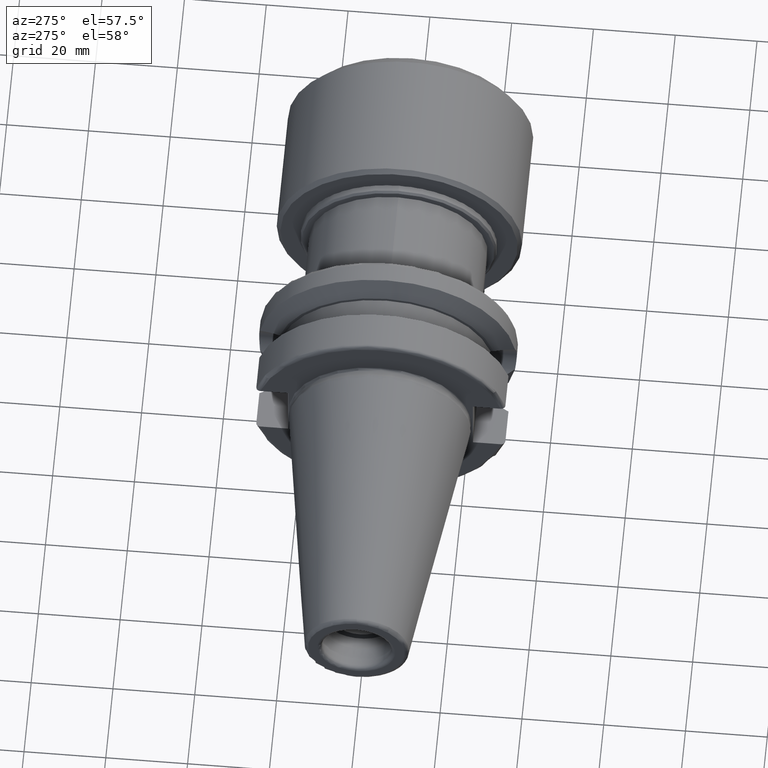
[diagram: clean part render]
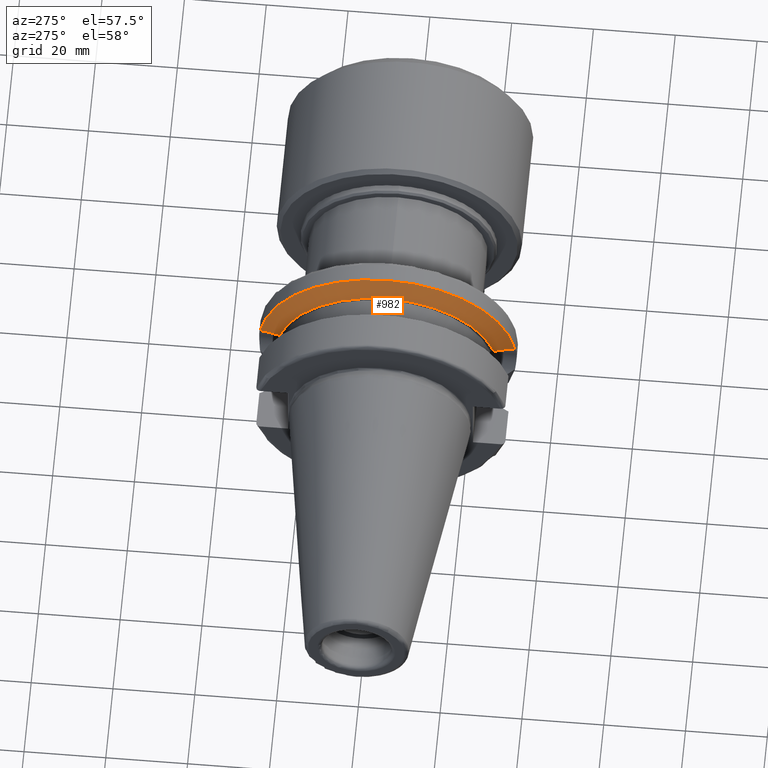
[diagram: same view with one face highlighted and labeled with its STEP entity id]
A machine part, auxiliary view. The second image highlights one B-rep face of the part: STEP entity #982.
In plain terms, the highlighted conical surface has half-angle 60.125 deg.
Its self-contained STEP definition (entity closure, byte-faithful):
#43=B_SPLINE_CURVE_WITH_KNOTS('',3,(#1649,#1650,#1651,#1652,#1653,#1654),
 .UNSPECIFIED.,.F.,.F.,(4,2,4),(1.46421027899563,1.54570476603974,2.04294020568402),
 .UNSPECIFIED.);
#52=B_SPLINE_CURVE_WITH_KNOTS('',3,(#1808,#1809,#1810,#1811,#1812,#1813),
 .UNSPECIFIED.,.F.,.F.,(4,2,4),(3.12975744792551,3.6269928875698,3.7084873746139),
 .UNSPECIFIED.);
#143=FACE_OUTER_BOUND('',#208,.T.);
#208=EDGE_LOOP('',(#816,#817,#818,#819));
#372=CIRCLE('',#1132,31.5);
#382=CIRCLE('',#1154,27.0940716549138);
#444=VERTEX_POINT('',#1641);
#445=VERTEX_POINT('',#1648);
#465=VERTEX_POINT('',#1728);
#478=VERTEX_POINT('',#1806);
#548=EDGE_CURVE('',#445,#444,#43,.T.);
#573=EDGE_CURVE('',#465,#444,#372,.T.);
#595=EDGE_CURVE('',#465,#478,#52,.T.);
#606=EDGE_CURVE('',#478,#445,#382,.T.);
#816=ORIENTED_EDGE('',*,*,#548,.T.);
#817=ORIENTED_EDGE('',*,*,#573,.F.);
#818=ORIENTED_EDGE('',*,*,#595,.T.);
#819=ORIENTED_EDGE('',*,*,#606,.T.);
#943=CONICAL_SURFACE('',#1153,29.2970358274569,1.0493792127616);
#982=ADVANCED_FACE('',(#143),#943,.T.);
#1132=AXIS2_PLACEMENT_3D('',#1739,#1343,#1344);
#1153=AXIS2_PLACEMENT_3D('',#1845,#1400,#1401);
#1154=AXIS2_PLACEMENT_3D('',#1846,#1402,#1403);
#1343=DIRECTION('center_axis',(1.,0.,0.));
#1344=DIRECTION('ref_axis',(0.,0.,-1.));
#1400=DIRECTION('center_axis',(1.,0.,0.));
#1401=DIRECTION('ref_axis',(0.,1.,0.));
#1402=DIRECTION('center_axis',(1.,0.,0.));
#1403=DIRECTION('ref_axis',(0.,0.,-1.));
#1641=CARTESIAN_POINT('',(21.6309636926618,-31.1782420264945,4.49079326370462));
#1648=CARTESIAN_POINT('',(19.1,-26.201311395455,6.89782574439221));
#1649=CARTESIAN_POINT('Ctrl Pts',(19.1,-26.201311395455,6.89782574439221));
#1650=CARTESIAN_POINT('Ctrl Pts',(19.2210929544554,-26.438473693351,6.82497151762397));
#1651=CARTESIAN_POINT('Ctrl Pts',(19.3406963650696,-26.6728819297427,6.74867108656043));
#1652=CARTESIAN_POINT('Ctrl Pts',(20.1784155384866,-28.3157123387483,6.1823136897693));
#1653=CARTESIAN_POINT('Ctrl Pts',(20.9728756148302,-29.8797957262938,5.46983244373119));
#1654=CARTESIAN_POINT('Ctrl Pts',(21.6309636926618,-31.1782420264945,4.49079326370462));
#1728=CARTESIAN_POINT('',(21.6309636926618,31.1782420264945,4.49079326370462));
#1739=CARTESIAN_POINT('Origin',(21.6309636926618,0.,0.));
#1806=CARTESIAN_POINT('',(19.1,26.201311395455,6.89782574439221));
#1808=CARTESIAN_POINT('Ctrl Pts',(21.6309636926618,31.1782420264945,4.49079326370461));
#1809=CARTESIAN_POINT('Ctrl Pts',(20.9728756148302,29.8797957262938,5.46983244373119));
#1810=CARTESIAN_POINT('Ctrl Pts',(20.1784155384866,28.3157123387483,6.1823136897693));
#1811=CARTESIAN_POINT('Ctrl Pts',(19.3406963650696,26.6728819297427,6.74867108656043));
#1812=CARTESIAN_POINT('Ctrl Pts',(19.2210929544554,26.438473693351,6.82497151762397));
#1813=CARTESIAN_POINT('Ctrl Pts',(19.1,26.201311395455,6.89782574439222));
#1845=CARTESIAN_POINT('Origin',(20.3654818463309,0.,0.));
#1846=CARTESIAN_POINT('Origin',(19.1,0.,0.));